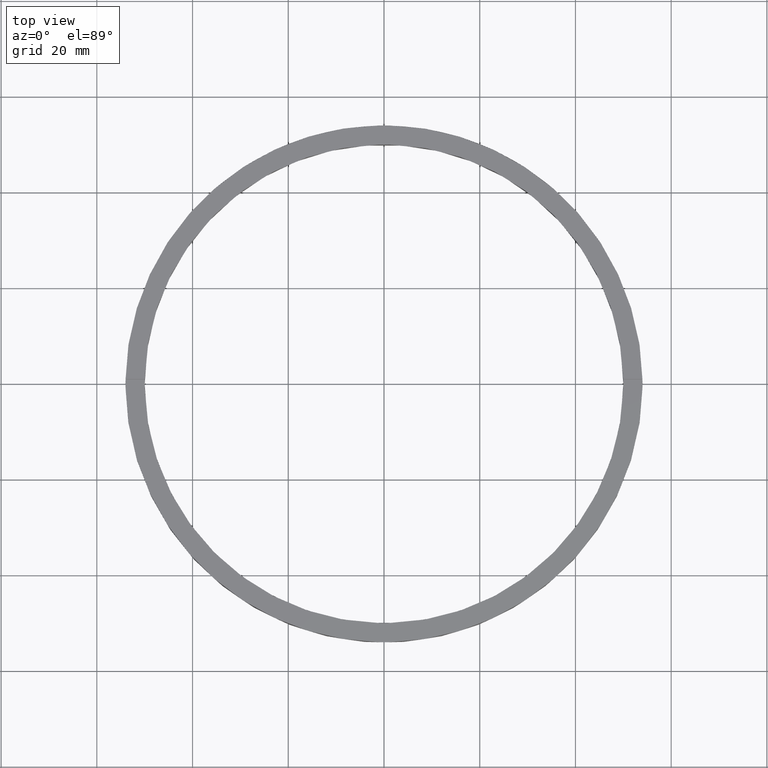
[diagram: clean part render]
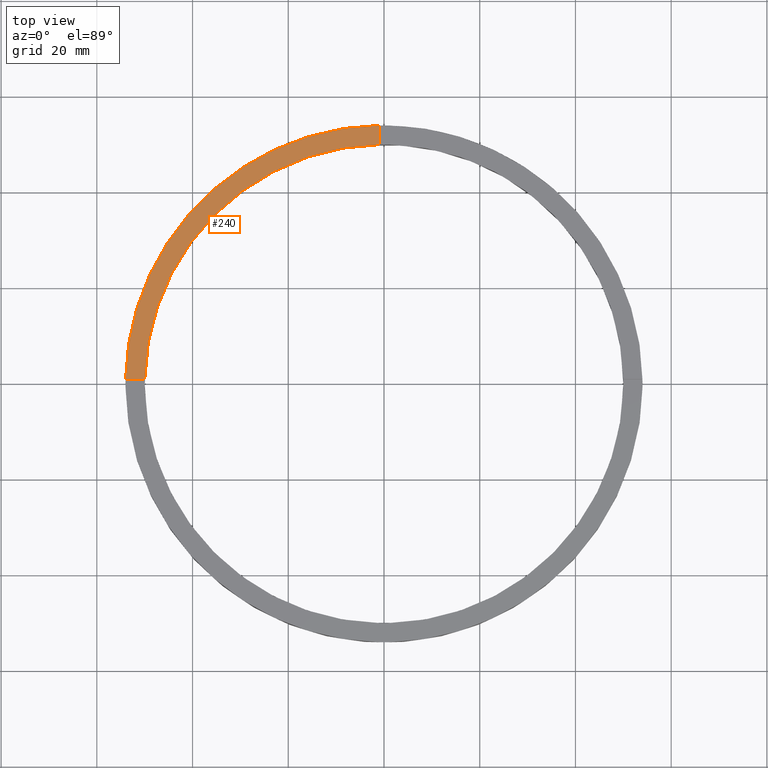
[diagram: same view with one face highlighted and labeled with its STEP entity id]
A machine part, top view. The second image highlights one B-rep face of the part: STEP entity #240.
In plain terms, the highlighted planar face has unit normal (0, 0, 1).
Its self-contained STEP definition (entity closure, byte-faithful):
#6 = EDGE_CURVE ( 'NONE', #728, #217, #572, .T. ) ;
#69 = CARTESIAN_POINT ( 'NONE',  ( 0.000000000000000000, 0.000000000000000000, 5.000000000000000000 ) ) ;
#89 = CIRCLE ( 'NONE', #778, 50.00000000000000000 ) ;
#154 = CARTESIAN_POINT ( 'NONE',  ( 0.000000000000000000, 0.000000000000000000, 5.000000000000000000 ) ) ;
#184 = ORIENTED_EDGE ( 'NONE', *, *, #512, .F. ) ;
#199 = ORIENTED_EDGE ( 'NONE', *, *, #492, .F. ) ;
#217 = VERTEX_POINT ( 'NONE', #528 ) ;
#221 = DIRECTION ( 'NONE',  ( -1.000000000000000000, -2.168404344971008621E-16, 0.000000000000000000 ) ) ;
#237 = DIRECTION ( 'NONE',  ( 0.000000000000000000, 0.000000000000000000, 1.000000000000000000 ) ) ;
#240 = ADVANCED_FACE ( 'NONE', ( #584 ), #493, .T. ) ;
#252 = AXIS2_PLACEMENT_3D ( 'NONE', #69, #237, #724 ) ;
#253 = CARTESIAN_POINT ( 'NONE',  ( -49.98999899979995121, 0.9999999999999681366, 5.000000000000000000 ) ) ;
#319 = VECTOR ( 'NONE', #221, 1000.000000000000000 ) ;
#324 = LINE ( 'NONE', #527, #626 ) ;
#330 = VERTEX_POINT ( 'NONE', #253 ) ;
#331 = CARTESIAN_POINT ( 'NONE',  ( -44.00000000000018474, 0.9999999999999694689, 5.000000000000000000 ) ) ;
#332 = LINE ( 'NONE', #331, #319 ) ;
#376 = CARTESIAN_POINT ( 'NONE',  ( 0.000000000000000000, 0.000000000000000000, 5.000000000000000000 ) ) ;
#427 = ORIENTED_EDGE ( 'NONE', *, *, #524, .F. ) ;
#430 = DIRECTION ( 'NONE',  ( 1.000000000000000000, 0.000000000000000000, 0.000000000000000000 ) ) ;
#459 = EDGE_LOOP ( 'NONE', ( #199, #735, #427, #184 ) ) ;
#491 = VERTEX_POINT ( 'NONE', #737 ) ;
#492 = EDGE_CURVE ( 'NONE', #728, #491, #324, .T. ) ;
#493 = PLANE ( 'NONE',  #252 ) ;
#512 = EDGE_CURVE ( 'NONE', #491, #330, #89, .T. ) ;
#520 = DIRECTION ( 'NONE',  ( 1.000000000000000000, 0.000000000000000000, 0.000000000000000000 ) ) ;
#524 = EDGE_CURVE ( 'NONE', #330, #217, #332, .T. ) ;
#527 = CARTESIAN_POINT ( 'NONE',  ( -1.000000000000027311, 44.00000000000000000, 5.000000000000000000 ) ) ;
#528 = CARTESIAN_POINT ( 'NONE',  ( -53.99073994677235078, 0.9999999999999672484, 5.000000000000000000 ) ) ;
#548 = DIRECTION ( 'NONE',  ( 0.000000000000000000, 0.000000000000000000, 1.000000000000000000 ) ) ;
#572 = CIRCLE ( 'NONE', #705, 54.00000000000000000 ) ;
#584 = FACE_OUTER_BOUND ( 'NONE', #459, .T. ) ;
#626 = VECTOR ( 'NONE', #780, 1000.000000000000000 ) ;
#705 = AXIS2_PLACEMENT_3D ( 'NONE', #376, #755, #430 ) ;
#724 = DIRECTION ( 'NONE',  ( 1.000000000000000000, 0.000000000000000000, -0.000000000000000000 ) ) ;
#728 = VERTEX_POINT ( 'NONE', #743 ) ;
#735 = ORIENTED_EDGE ( 'NONE', *, *, #6, .T. ) ;
#737 = CARTESIAN_POINT ( 'NONE',  ( -1.000000000000027311, 49.98999899979995121, 5.000000000000000000 ) ) ;
#743 = CARTESIAN_POINT ( 'NONE',  ( -1.000000000000027311, 53.99073994677235078, 5.000000000000000000 ) ) ;
#755 = DIRECTION ( 'NONE',  ( 0.000000000000000000, 0.000000000000000000, 1.000000000000000000 ) ) ;
#778 = AXIS2_PLACEMENT_3D ( 'NONE', #154, #548, #520 ) ;
#780 = DIRECTION ( 'NONE',  ( -0.000000000000000000, -1.000000000000000000, -0.000000000000000000 ) ) ;